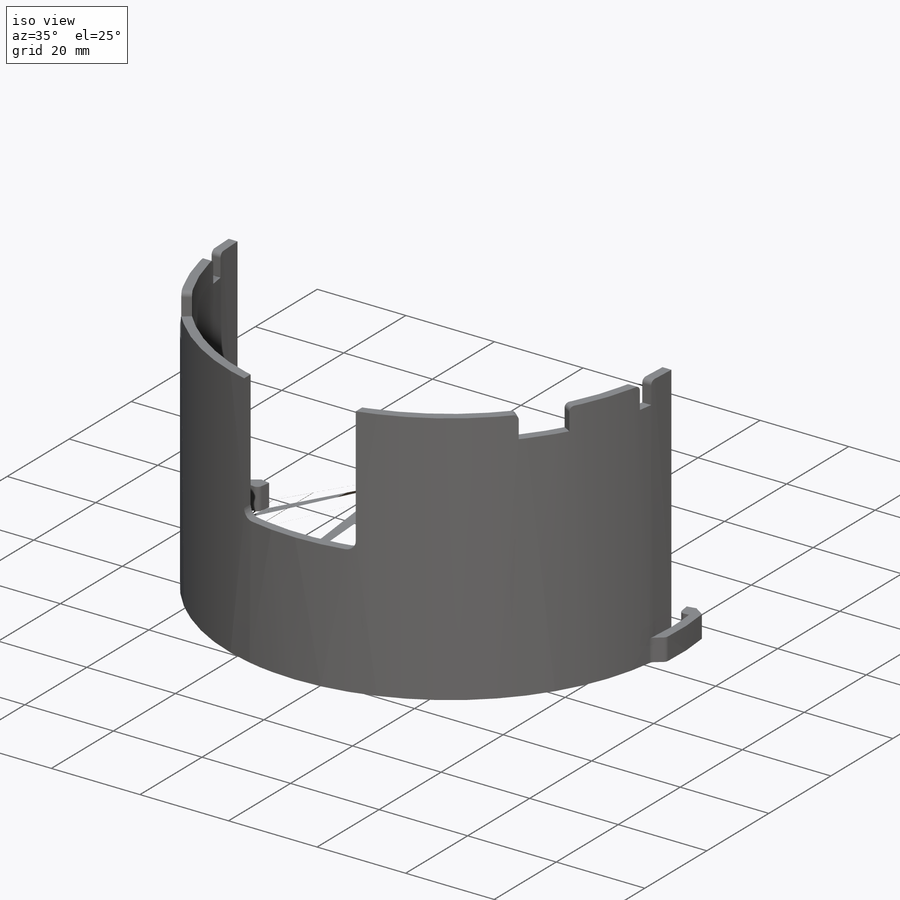
[diagram: iso view]
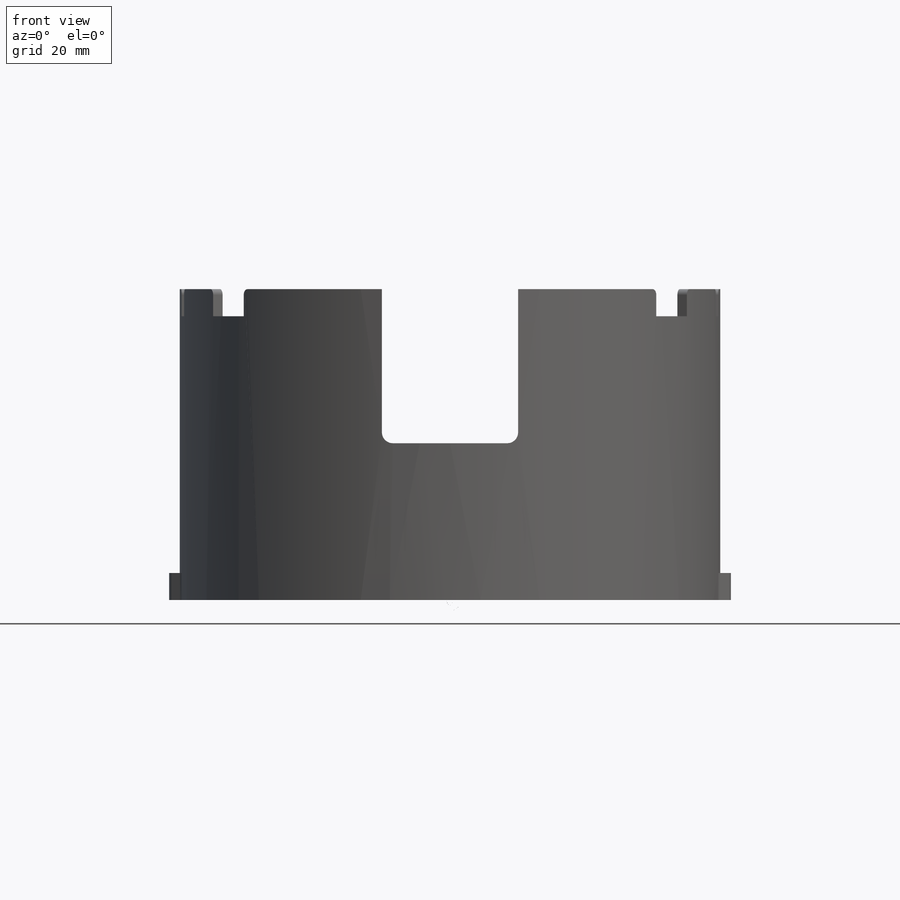
[diagram: front view]
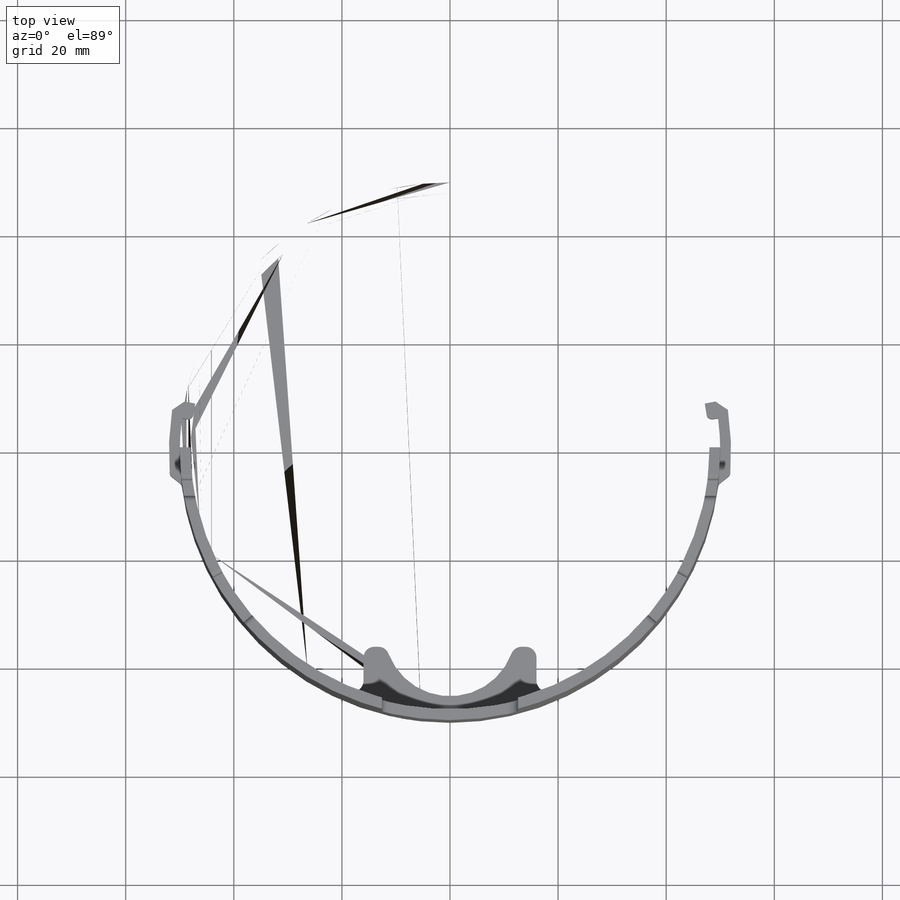
[diagram: top view]
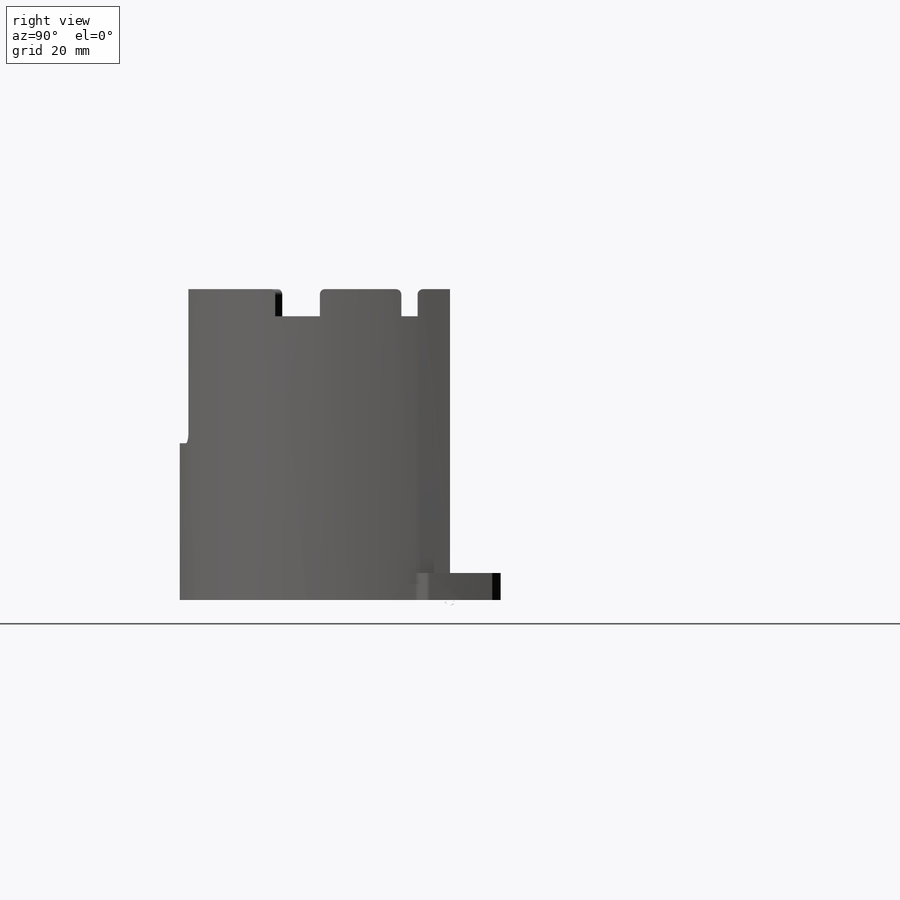
[diagram: right view]
SOLIDWORKS PART (.sldprt)
format: sldprt  version: not decoded by parser v0  size: 305,152 bytes
history: native  units: mm
features: sketch x2, cut_extrude x2, fillet x2, material x1 + 1 further entry (+17 scaffold rows collapsed; 3 parser-record rows omitted)
feature tree (28):
  scaffold x17  (default folders/planes/origin — collapsed)
  material  "ABS"
  "d1_a_t"
  parser-record x3  (decoder bookkeeping rows leaked as tree rows — omitted from the tree; the rows remain in map.json)
  sketch  "Sketch1"  dims[D1=25.2mm]
  cut_extrude  "Fan Clearance"  Depth=28.5mm
  fillet  "Shell Fillet"  Radius=2mm
  sketch  "Sketch2"  dims[D1=10.0mm D2=15.0mm]
  cut_extrude  "Wire Clearance"  [1 undecoded]
  fillet  "Wire Clearance Fillet"  Radius=1mm
decode coverage: 5 of 6 modeling features carry decoded parameters; 1 rows unclassified (native names shown)
note: 1 parameter value undecoded
note: suppression state not decoded; provenance and decode notes live in map.json
